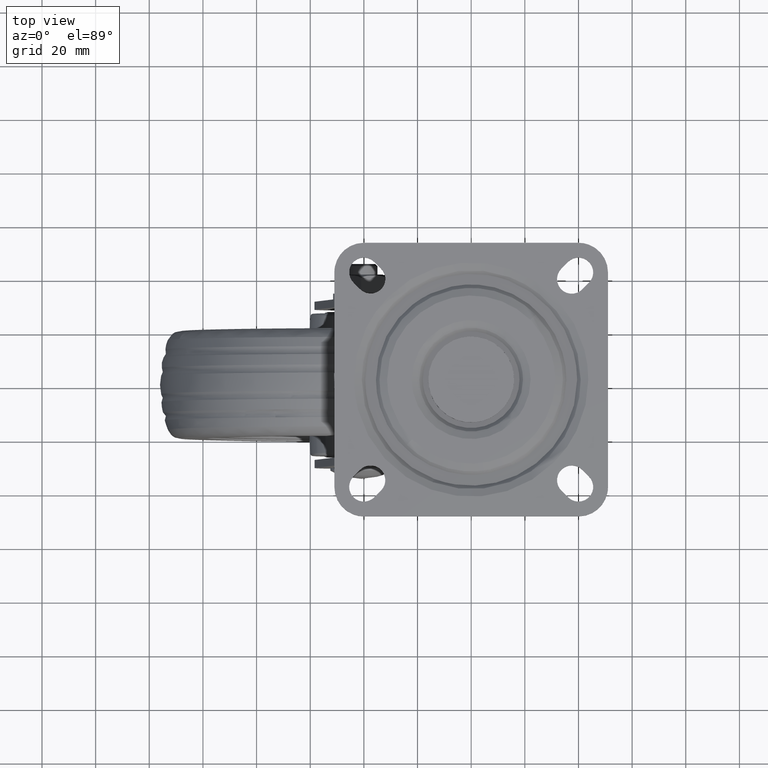
[diagram: clean part render]
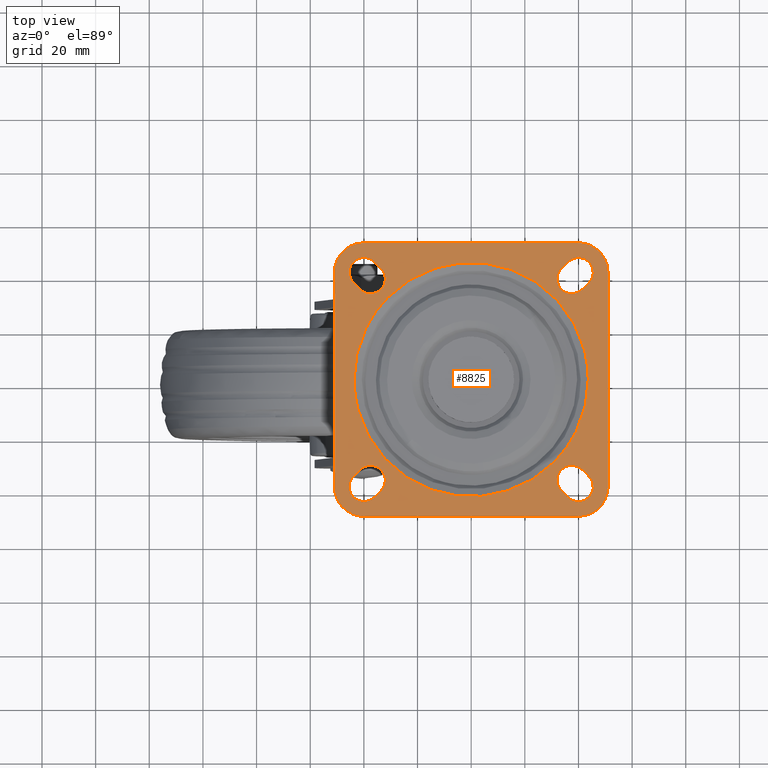
[diagram: same view with one face highlighted and labeled with its STEP entity id]
A machine part, top view. The second image highlights one B-rep face of the part: STEP entity #8825.
In plain terms, the highlighted face is a freeform B-spline surface patch.
Its self-contained STEP definition (entity closure, byte-faithful):
#8352=CARTESIAN_POINT('',(-31.063409350435641,30.675487317150090,-6.616970E-016));
#8353=VERTEX_POINT('',#8352);
#8367=CARTESIAN_POINT('',(-43.656854249492397,0.0,0.0));
#8368=VERTEX_POINT('',#8367);
#8369=CARTESIAN_POINT('',(-43.656854249492397,0.0,0.0));
#8370=CARTESIAN_POINT('',(-43.656854248090532,17.922785791744008,-3.308485E-016));
#8371=CARTESIAN_POINT('',(-31.063409350435641,30.675487317150093,-6.616970E-016));
#8379=(BOUNDED_CURVE()B_SPLINE_CURVE(2,(#8369,#8370,#8371),.UNSPECIFIED.,.F.,.U.)B_SPLINE_CURVE_WITH_KNOTS((3,3),(0.0,0.124051937432030),.UNSPECIFIED.)CURVE()GEOMETRIC_REPRESENTATION_ITEM()RATIONAL_B_SPLINE_CURVE((1.0,0.854664114981951,0.853561814883004))REPRESENTATION_ITEM(''));
#8380=EDGE_CURVE('',#8368,#8353,#8379,.T.);
#8382=CARTESIAN_POINT('',(31.063409350435641,-30.675487317150090,-6.616970E-016));
#8383=VERTEX_POINT('',#8382);
#8384=CARTESIAN_POINT('',(31.063409350435641,-30.675487317150093,-6.616970E-016));
#8385=CARTESIAN_POINT('',(18.244154641217776,-43.656854246961153,-6.049355E-016));
#8386=CARTESIAN_POINT('',(-1.977401E-009,-43.656854247539677,-4.666743E-016));
#8387=CARTESIAN_POINT('',(-43.656854250067916,-43.656854248924063,-1.358258E-016));
#8388=CARTESIAN_POINT('',(-43.656854249492397,0.0,0.0));
#8396=(BOUNDED_CURVE()B_SPLINE_CURVE(2,(#8384,#8385,#8386,#8387,#8388),.UNSPECIFIED.,.F.,.U.)B_SPLINE_CURVE_WITH_KNOTS((3,2,3),(0.624051937432030,0.750000000000000,1.0),.UNSPECIFIED.)CURVE()GEOMETRIC_REPRESENTATION_ITEM()RATIONAL_B_SPLINE_CURVE((0.853561814883004,0.852442666204596,1.0,0.707106781186547,1.0))REPRESENTATION_ITEM(''));
#8397=EDGE_CURVE('',#8383,#8368,#8396,.T.);
#8446=CARTESIAN_POINT('',(43.656854249492397,0.0,0.0));
#8447=VERTEX_POINT('',#8446);
#8448=CARTESIAN_POINT('',(43.656854249492397,0.0,0.0));
#8449=CARTESIAN_POINT('',(43.656854248090525,-17.922785791744005,-3.308485E-016));
#8450=CARTESIAN_POINT('',(31.063409350435641,-30.675487317150093,-6.616970E-016));
#8458=(BOUNDED_CURVE()B_SPLINE_CURVE(2,(#8448,#8449,#8450),.UNSPECIFIED.,.F.,.U.)B_SPLINE_CURVE_WITH_KNOTS((3,3),(0.500000000000000,0.624051937432030),.UNSPECIFIED.)CURVE()GEOMETRIC_REPRESENTATION_ITEM()RATIONAL_B_SPLINE_CURVE((1.0,0.854664114981951,0.853561814883004))REPRESENTATION_ITEM(''));
#8459=EDGE_CURVE('',#8447,#8383,#8458,.T.);
#8461=CARTESIAN_POINT('',(-31.063409350435641,30.675487317150093,-6.616970E-016));
#8462=CARTESIAN_POINT('',(-18.244154641217786,43.656854246961167,-6.049355E-016));
#8463=CARTESIAN_POINT('',(1.977399E-009,43.656854247539691,-4.666743E-016));
#8464=CARTESIAN_POINT('',(43.656854250067916,43.656854248924063,-1.358258E-016));
#8465=CARTESIAN_POINT('',(43.656854249492397,0.0,0.0));
#8473=(BOUNDED_CURVE()B_SPLINE_CURVE(2,(#8461,#8462,#8463,#8464,#8465),.UNSPECIFIED.,.F.,.U.)B_SPLINE_CURVE_WITH_KNOTS((3,2,3),(0.124051937432030,0.250000000000000,0.500000000000000),.UNSPECIFIED.)CURVE()GEOMETRIC_REPRESENTATION_ITEM()RATIONAL_B_SPLINE_CURVE((0.853561814883004,0.852442666204596,1.0,0.707106781186547,1.0))REPRESENTATION_ITEM(''));
#8474=EDGE_CURVE('',#8353,#8447,#8473,.T.);
#8482=CARTESIAN_POINT('',(-56.094879104004477,56.094899802304212,0.0));
#8483=CARTESIAN_POINT('',(56.094885839856367,56.094899802304212,0.0));
#8484=CARTESIAN_POINT('',(-56.094879104004477,-56.094902538157413,0.0));
#8485=CARTESIAN_POINT('',(56.094885839856367,-56.094902538157413,0.0));
#8486=B_SPLINE_SURFACE_WITH_KNOTS('',1,1,((#8482,#8484),(#8483,#8485)),.UNSPECIFIED.,.F.,.F.,.U.,(2,2),(2,2),(0.0,112.189764943860890),(0.0,112.189802340461600),.UNSPECIFIED.);
#8487=CARTESIAN_POINT('',(39.999977896509812,50.999999999997698,0.0));
#8488=VERTEX_POINT('',#8487);
#8489=CARTESIAN_POINT('',(-39.999977544248303,51.0,0.0));
#8490=VERTEX_POINT('',#8489);
#8491=CARTESIAN_POINT('',(39.999977896509812,50.999999999997698,0.0));
#8492=CARTESIAN_POINT('',(-39.999977544248303,51.0,0.0));
#8493=QUASI_UNIFORM_CURVE('',1,(#8491,#8492),.UNSPECIFIED.,.F.,.U.);
#8494=EDGE_CURVE('',#8488,#8490,#8493,.T.);
#8495=ORIENTED_EDGE('',*,*,#8494,.T.);
#8496=CARTESIAN_POINT('',(-50.999980999998101,40.000006911503853,0.0));
#8497=VERTEX_POINT('',#8496);
#8498=CARTESIAN_POINT('',(-39.999977544248303,51.0,0.0));
#8499=CARTESIAN_POINT('',(-50.999974088496387,51.000003455750331,0.0));
#8500=CARTESIAN_POINT('',(-50.999980999998073,40.000006911503853,0.0));
#8508=(BOUNDED_CURVE()B_SPLINE_CURVE(2,(#8498,#8499,#8500),.UNSPECIFIED.,.F.,.U.)CURVE()GEOMETRIC_REPRESENTATION_ITEM()QUASI_UNIFORM_CURVE()RATIONAL_B_SPLINE_CURVE((1.0,0.707106892258612,1.0))REPRESENTATION_ITEM(''));
#8509=EDGE_CURVE('',#8490,#8497,#8508,.T.);
#8510=ORIENTED_EDGE('',*,*,#8509,.T.);
#8511=CARTESIAN_POINT('',(-50.999981000000197,-40.0,0.0));
#8512=VERTEX_POINT('',#8511);
#8513=CARTESIAN_POINT('',(-50.999980999998101,40.000006911503853,0.0));
#8514=CARTESIAN_POINT('',(-50.999981000000197,-40.0,0.0));
#8515=QUASI_UNIFORM_CURVE('',1,(#8513,#8514),.UNSPECIFIED.,.F.,.U.);
#8516=EDGE_CURVE('',#8497,#8512,#8515,.T.);
#8517=ORIENTED_EDGE('',*,*,#8516,.T.);
#8518=CARTESIAN_POINT('',(-39.999977544248303,-51.0,0.0));
#8519=VERTEX_POINT('',#8518);
#8520=CARTESIAN_POINT('',(-50.999981000000197,-40.0,0.0));
#8521=CARTESIAN_POINT('',(-51.000414229232163,-41.079957559426312,0.0));
#8522=CARTESIAN_POINT('',(-50.726082468724883,-42.924577940020527,0.0));
#8523=CARTESIAN_POINT('',(-49.812276872156517,-45.092469599658173,0.0));
#8524=CARTESIAN_POINT('',(-48.764689389983822,-46.724452225793812,0.0));
#8525=CARTESIAN_POINT('',(-47.408520629219332,-48.239608509791083,0.0));
#8526=CARTESIAN_POINT('',(-45.580879401814173,-49.577746981158782,0.0));
#8527=CARTESIAN_POINT('',(-43.059376365284677,-50.695494871390487,0.0));
#8528=CARTESIAN_POINT('',(-41.169989318484618,-51.000651379700130,0.0));
#8529=CARTESIAN_POINT('',(-39.999977544248303,-51.0,0.0));
#8530=B_SPLINE_CURVE_WITH_KNOTS('',3,(#8520,#8521,#8522,#8523,#8524,#8525,#8526,#8527,#8528,#8529),.UNSPECIFIED.,.F.,.U.,(4,1,1,1,1,1,1,4),(0.000000224879592,3.239766866752317,5.534645671236040,7.019592646819724,9.044380050357612,11.609224060283671,13.769105835571580,17.278871467454529),.UNSPECIFIED.);
#8531=EDGE_CURVE('',#8512,#8519,#8530,.T.);
#8532=ORIENTED_EDGE('',*,*,#8531,.T.);
#8533=CARTESIAN_POINT('',(39.999984999999803,-51.0,0.0));
#8534=VERTEX_POINT('',#8533);
#8535=CARTESIAN_POINT('',(-39.999977544248303,-51.0,0.0));
#8536=CARTESIAN_POINT('',(39.999984999999803,-51.0,0.0));
#8537=QUASI_UNIFORM_CURVE('',1,(#8535,#8536),.UNSPECIFIED.,.F.,.U.);
#8538=EDGE_CURVE('',#8519,#8534,#8537,.T.);
#8539=ORIENTED_EDGE('',*,*,#8538,.T.);
#8540=CARTESIAN_POINT('',(50.999984999999803,-40.0,0.0));
#8541=VERTEX_POINT('',#8540);
#8542=CARTESIAN_POINT('',(39.999984999999803,-51.000000000000007,0.0));
#8543=CARTESIAN_POINT('',(50.999984999999803,-51.000000000000007,0.0));
#8544=CARTESIAN_POINT('',(50.999984999999803,-40.0,0.0));
#8552=(BOUNDED_CURVE()B_SPLINE_CURVE(2,(#8542,#8543,#8544),.UNSPECIFIED.,.F.,.U.)CURVE()GEOMETRIC_REPRESENTATION_ITEM()QUASI_UNIFORM_CURVE()RATIONAL_B_SPLINE_CURVE((1.0,0.707106781186548,1.0))REPRESENTATION_ITEM(''));
#8553=EDGE_CURVE('',#8534,#8541,#8552,.T.);
#8554=ORIENTED_EDGE('',*,*,#8553,.T.);
#8555=CARTESIAN_POINT('',(50.999984999999803,40.0,0.0));
#8556=VERTEX_POINT('',#8555);
#8557=CARTESIAN_POINT('',(50.999984999999803,-40.0,0.0));
#8558=CARTESIAN_POINT('',(50.999984999999803,40.0,0.0));
#8559=QUASI_UNIFORM_CURVE('',1,(#8557,#8558),.UNSPECIFIED.,.F.,.U.);
#8560=EDGE_CURVE('',#8541,#8556,#8559,.T.);
#8561=ORIENTED_EDGE('',*,*,#8560,.T.);
#8562=CARTESIAN_POINT('',(50.999984999999803,40.0,0.0));
#8563=CARTESIAN_POINT('',(51.000126687770319,40.809938090371020,0.0));
#8564=CARTESIAN_POINT('',(50.820273453016661,42.429767044045683,0.0));
#8565=CARTESIAN_POINT('',(49.981057939160777,44.870032636646378,0.0));
#8566=CARTESIAN_POINT('',(48.682039668827777,46.893655427234059,0.0));
#8567=CARTESIAN_POINT('',(47.180894646219400,48.394437745954789,0.0));
#8568=CARTESIAN_POINT('',(45.535458523951853,49.583921351749908,0.0));
#8569=CARTESIAN_POINT('',(43.194439477320643,50.673828316418707,0.0));
#8570=CARTESIAN_POINT('',(41.169960737094137,51.000656474085289,0.0));
#8571=CARTESIAN_POINT('',(39.999977896509812,50.999999999997698,0.0));
#8572=B_SPLINE_CURVE_WITH_KNOTS('',3,(#8562,#8563,#8564,#8565,#8566,#8567,#8568,#8569,#8570,#8571),.UNSPECIFIED.,.F.,.U.,(4,1,1,1,1,1,1,4),(0.000000224827026,2.429806476383883,4.859693750232909,7.694520703182066,9.584351370562583,11.204251671294470,13.769108742410539,17.278875115261460),.UNSPECIFIED.);
#8573=EDGE_CURVE('',#8556,#8488,#8572,.T.);
#8574=ORIENTED_EDGE('',*,*,#8573,.T.);
#8575=EDGE_LOOP('',(#8495,#8510,#8517,#8532,#8539,#8554,#8561,#8574));
#8576=FACE_OUTER_BOUND('',#8575,.T.);
#8577=CARTESIAN_POINT('',(-33.597049696237399,41.375174696237600,0.0));
#8578=VERTEX_POINT('',#8577);
#8579=CARTESIAN_POINT('',(-36.124825303777712,43.902950303777700,0.0));
#8580=VERTEX_POINT('',#8579);
#8581=CARTESIAN_POINT('',(-33.597049696237399,41.375174696237600,0.0));
#8582=CARTESIAN_POINT('',(-36.124825303777712,43.902950303777700,0.0));
#8583=QUASI_UNIFORM_CURVE('',1,(#8581,#8582),.UNSPECIFIED.,.F.,.U.);
#8584=EDGE_CURVE('',#8578,#8580,#8583,.T.);
#8585=ORIENTED_EDGE('',*,*,#8584,.F.);
#8586=CARTESIAN_POINT('',(-41.389091296521151,33.610916703473400,0.0));
#8587=VERTEX_POINT('',#8586);
#8588=CARTESIAN_POINT('',(-41.389091296521151,33.610916703473400,0.0));
#8589=CARTESIAN_POINT('',(-40.976119919154087,33.197536525266173,0.0));
#8590=CARTESIAN_POINT('',(-40.238201581157533,32.664540302596983,0.0));
#8591=CARTESIAN_POINT('',(-39.023650653042559,32.178279917654983,0.0));
#8592=CARTESIAN_POINT('',(-38.001302543422710,31.987168295568729,0.0));
#8593=CARTESIAN_POINT('',(-36.828431695606099,32.000497980563978,0.0));
#8594=CARTESIAN_POINT('',(-35.723538714071012,32.247223108015760,0.0));
#8595=CARTESIAN_POINT('',(-34.702216926376458,32.728672857079943,0.0));
#8596=CARTESIAN_POINT('',(-33.713864829611182,33.440483562935512,0.0));
#8597=CARTESIAN_POINT('',(-32.910884521536182,34.367711195098060,0.0));
#8598=CARTESIAN_POINT('',(-32.258395254798749,35.657324260061280,0.0));
#8599=CARTESIAN_POINT('',(-31.976575041803041,36.897774883913243,0.0));
#8600=CARTESIAN_POINT('',(-32.006301681657177,38.252443269355503,0.0));
#8601=CARTESIAN_POINT('',(-32.267245701777441,39.307446092239147,0.0));
#8602=CARTESIAN_POINT('',(-32.784053699654251,40.409091408184793,0.0));
#8603=CARTESIAN_POINT('',(-33.248578356987942,41.024446076045344,0.0));
#8604=CARTESIAN_POINT('',(-33.597049696237399,41.375174696237600,0.0));
#8605=B_SPLINE_CURVE_WITH_KNOTS('',3,(#8588,#8589,#8590,#8591,#8592,#8593,#8594,#8595,#8596,#8597,#8598,#8599,#8600,#8601,#8602,#8603,#8604),.UNSPECIFIED.,.F.,.U.,(4,1,1,1,1,1,1,1,1,1,1,1,1,1,4),(0.000000899976094,1.752875033313796,2.696751487981105,3.910358717900175,4.854272358750377,6.202666221692656,7.281439953531624,8.225378191476185,9.843231856118139,10.921987729555481,12.540138365848470,13.618879241312779,14.967296503559490,15.776343902140519,17.259557008160559),.UNSPECIFIED.);
#8606=EDGE_CURVE('',#8587,#8578,#8605,.T.);
#8607=ORIENTED_EDGE('',*,*,#8606,.F.);
#8608=CARTESIAN_POINT('',(-43.889092183694203,36.110917590648299,0.0));
#8609=VERTEX_POINT('',#8608);
#8610=CARTESIAN_POINT('',(-43.889092183694203,36.110917590648299,0.0));
#8611=CARTESIAN_POINT('',(-41.389091296521151,33.610916703473400,0.0));
#8612=QUASI_UNIFORM_CURVE('',1,(#8610,#8611),.UNSPECIFIED.,.F.,.U.);
#8613=EDGE_CURVE('',#8609,#8587,#8612,.T.);
#8614=ORIENTED_EDGE('',*,*,#8613,.F.);
#8615=CARTESIAN_POINT('',(-36.124825303777712,43.902950303777700,0.0));
#8616=CARTESIAN_POINT('',(-36.539274771118912,44.314845611466062,0.0));
#8617=CARTESIAN_POINT('',(-37.279078661764373,44.845239848090813,0.0));
#8618=CARTESIAN_POINT('',(-38.411494160035403,45.293828691391120,0.0));
#8619=CARTESIAN_POINT('',(-39.515509269314563,45.524378960265111,0.0));
#8620=CARTESIAN_POINT('',(-40.694590274290839,45.506719915611640,0.0));
#8621=CARTESIAN_POINT('',(-42.095824833629429,45.152311044131537,0.0));
#8622=CARTESIAN_POINT('',(-43.250794276471908,44.513459859577509,0.0));
#8623=CARTESIAN_POINT('',(-44.197550096956718,43.608405091784412,0.0));
#8624=CARTESIAN_POINT('',(-44.820253389117468,42.721344556309070,0.0));
#8625=CARTESIAN_POINT('',(-45.221637076410218,41.812431652587691,0.0));
#8626=CARTESIAN_POINT('',(-45.461446620542553,40.850353065376950,0.0));
#8627=CARTESIAN_POINT('',(-45.533561169330163,39.859392438178887,0.0));
#8628=CARTESIAN_POINT('',(-45.378081618590407,38.604355762283483,0.0));
#8629=CARTESIAN_POINT('',(-44.870435410788417,37.290637351157017,0.0));
#8630=CARTESIAN_POINT('',(-44.238791145648683,36.460406802510079,0.0));
#8631=CARTESIAN_POINT('',(-43.889092183694203,36.110917590648299,0.0));
#8632=B_SPLINE_CURVE_WITH_KNOTS('',3,(#8615,#8616,#8617,#8618,#8619,#8620,#8621,#8622,#8623,#8624,#8625,#8626,#8627,#8628,#8629,#8630,#8631),.UNSPECIFIED.,.F.,.U.,(4,1,1,1,1,1,1,1,1,1,1,1,1,1,4),(0.000000899960618,1.752873756563684,2.696749524073439,3.640663756995556,5.123951614473599,6.202661704811863,7.955698451848873,9.034188351084485,10.112916004723679,11.191667435874280,12.000745933678100,13.079505971402980,14.158231292889930,15.776332413274190,17.259544438840908),.UNSPECIFIED.);
#8633=EDGE_CURVE('',#8580,#8609,#8632,.T.);
#8634=ORIENTED_EDGE('',*,*,#8633,.F.);
#8635=EDGE_LOOP('',(#8585,#8607,#8614,#8634));
#8636=FACE_BOUND('',#8635,.T.);
#8637=CARTESIAN_POINT('',(36.110900999999799,-43.889082000000052,0.0));
#8638=VERTEX_POINT('',#8637);
#8639=CARTESIAN_POINT('',(43.899431855316500,-36.121284851172902,0.0));
#8640=VERTEX_POINT('',#8639);
#8641=CARTESIAN_POINT('',(36.110900999999799,-43.889082000000052,0.0));
#8642=CARTESIAN_POINT('',(36.396962082167569,-44.175247081244130,0.0));
#8643=CARTESIAN_POINT('',(37.032632156909457,-44.683960657922327,0.0));
#8644=CARTESIAN_POINT('',(38.129989077064671,-45.220026400438329,0.0));
#8645=CARTESIAN_POINT('',(39.230118029871932,-45.481786147748572,0.0));
#8646=CARTESIAN_POINT('',(40.312366177385378,-45.522278175888601,0.0));
#8647=CARTESIAN_POINT('',(41.563876249702083,-45.337926090248722,0.0));
#8648=CARTESIAN_POINT('',(42.777985246462443,-44.818991393929281,0.0));
#8649=CARTESIAN_POINT('',(43.811593484876028,-44.013937245953102,0.0));
#8650=CARTESIAN_POINT('',(44.520910412674787,-43.194054744450057,0.0));
#8651=CARTESIAN_POINT('',(45.012104363274929,-42.330105767529417,0.0));
#8652=CARTESIAN_POINT('',(45.347830842933462,-41.396846560599172,0.0));
#8653=CARTESIAN_POINT('',(45.519610338888050,-40.417912890237417,0.0));
#8654=CARTESIAN_POINT('',(45.495178879816933,-39.333954984118577,0.0));
#8655=CARTESIAN_POINT('',(45.259938697655507,-38.275547327628601,0.0));
#8656=CARTESIAN_POINT('',(44.768272948085261,-37.159298466001268,0.0));
#8657=CARTESIAN_POINT('',(44.248321962108193,-36.471797197589531,0.0));
#8658=CARTESIAN_POINT('',(43.899431855316500,-36.121284851172902,0.0));
#8659=B_SPLINE_CURVE_WITH_KNOTS('',3,(#8641,#8642,#8643,#8644,#8645,#8646,#8647,#8648,#8649,#8650,#8651,#8652,#8653,#8654,#8655,#8656,#8657,#8658),.UNSPECIFIED.,.F.,.U.,(4,1,1,1,1,1,1,1,1,1,1,1,1,1,1,4),(0.000000901539412,1.213885798352875,2.427770040851003,3.641717588707897,4.585909590637808,5.664947170123151,7.418435940473644,8.497453553103849,9.576305411063402,10.655376469027640,11.464674939791371,12.543759163581500,13.622811512739981,14.701858247233000,15.780899003806599,17.264540487673479),.UNSPECIFIED.);
#8660=EDGE_CURVE('',#8638,#8640,#8659,.T.);
#8661=ORIENTED_EDGE('',*,*,#8660,.F.);
#8662=CARTESIAN_POINT('',(33.610898926999553,-41.389078926999453,0.0));
#8663=VERTEX_POINT('',#8662);
#8664=CARTESIAN_POINT('',(36.110900999999799,-43.889082000000052,0.0));
#8665=CARTESIAN_POINT('',(33.610898926999553,-41.389078926999453,0.0));
#8666=QUASI_UNIFORM_CURVE('',1,(#8664,#8665),.UNSPECIFIED.,.F.,.U.);
#8667=EDGE_CURVE('',#8638,#8663,#8666,.T.);
#8668=ORIENTED_EDGE('',*,*,#8667,.T.);
#8669=CARTESIAN_POINT('',(41.378527047411552,-33.600381051628602,0.0));
#8670=VERTEX_POINT('',#8669);
#8671=CARTESIAN_POINT('',(41.378527047411552,-33.600381051628602,0.0));
#8672=CARTESIAN_POINT('',(41.091692791563553,-33.315000562146828,0.0));
#8673=CARTESIAN_POINT('',(40.454662987751952,-32.808004213996469,0.0));
#8674=CARTESIAN_POINT('',(39.355871708015329,-32.274944366701007,0.0));
#8675=CARTESIAN_POINT('',(38.078919133526838,-31.974620214569079,0.0));
#8676=CARTESIAN_POINT('',(36.808759117790231,-31.992798601303381,0.0));
#8677=CARTESIAN_POINT('',(35.494627834575752,-32.324513404849171,0.0));
#8678=CARTESIAN_POINT('',(34.408283397160822,-32.890371147707420,0.0));
#8679=CARTESIAN_POINT('',(33.485928389034001,-33.688464353204687,0.0));
#8680=CARTESIAN_POINT('',(32.820005490072838,-34.543942762882672,0.0));
#8681=CARTESIAN_POINT('',(32.252297772979738,-35.674360732359673,0.0));
#8682=CARTESIAN_POINT('',(31.974545014778460,-36.916161212457332,0.0));
#8683=CARTESIAN_POINT('',(32.004370104310730,-38.090410462406332,0.0));
#8684=CARTESIAN_POINT('',(32.198360240435882,-39.062999189556862,0.0));
#8685=CARTESIAN_POINT('',(32.637567158028830,-40.200918740697873,0.0));
#8686=CARTESIAN_POINT('',(33.197405268019580,-40.975984903624060,0.0));
#8687=CARTESIAN_POINT('',(33.610898926999553,-41.389078926999453,0.0));
#8688=B_SPLINE_CURVE_WITH_KNOTS('',3,(#8671,#8672,#8673,#8674,#8675,#8676,#8677,#8678,#8679,#8680,#8681,#8682,#8683,#8684,#8685,#8686,#8687),.UNSPECIFIED.,.F.,.U.,(4,1,1,1,1,1,1,1,1,1,1,1,1,1,4),(0.000000901461799,1.213868673552703,2.427735803625090,3.641666233748950,5.125362543879588,6.204369579643378,7.688114865607949,8.766977889038804,9.845935083370161,10.924987227191790,12.543582271101190,13.622619403349630,14.431891235913231,15.510898211349540,17.264297021975398),.UNSPECIFIED.);
#8689=EDGE_CURVE('',#8670,#8663,#8688,.T.);
#8690=ORIENTED_EDGE('',*,*,#8689,.F.);
#8691=CARTESIAN_POINT('',(41.378527047411552,-33.600381051628602,0.0));
#8692=CARTESIAN_POINT('',(43.899431855316500,-36.121284851172902,0.0));
#8693=QUASI_UNIFORM_CURVE('',1,(#8691,#8692),.UNSPECIFIED.,.F.,.U.);
#8694=EDGE_CURVE('',#8670,#8640,#8693,.T.);
#8695=ORIENTED_EDGE('',*,*,#8694,.T.);
#8696=EDGE_LOOP('',(#8661,#8668,#8690,#8695));
#8697=FACE_BOUND('',#8696,.T.);
#8698=CARTESIAN_POINT('',(-43.889083000000213,-36.110888999999752,0.0));
#8699=VERTEX_POINT('',#8698);
#8700=CARTESIAN_POINT('',(-36.121835741196200,-43.899979741195750,0.0));
#8701=VERTEX_POINT('',#8700);
#8702=CARTESIAN_POINT('',(-43.889083000000213,-36.110888999999752,0.0));
#8703=CARTESIAN_POINT('',(-44.238900598733423,-36.460443225900832,0.0));
#8704=CARTESIAN_POINT('',(-44.733132665260896,-37.110423768400757,0.0));
#8705=CARTESIAN_POINT('',(-45.297429351633618,-38.340930146925110,0.0));
#8706=CARTESIAN_POINT('',(-45.537470966896372,-39.544194036234479,0.0));
#8707=CARTESIAN_POINT('',(-45.476119164734747,-40.807643068139981,0.0));
#8708=CARTESIAN_POINT('',(-45.180964052651213,-41.991125125086057,0.0));
#8709=CARTESIAN_POINT('',(-44.618106005835173,-43.078983147141230,0.0));
#8710=CARTESIAN_POINT('',(-43.822587965887827,-44.003519739106281,0.0));
#8711=CARTESIAN_POINT('',(-43.040096150445727,-44.616065535997812,0.0));
#8712=CARTESIAN_POINT('',(-42.086838767543568,-45.127765254126558,0.0));
#8713=CARTESIAN_POINT('',(-41.047125295154828,-45.445240900917007,0.0));
#8714=CARTESIAN_POINT('',(-39.875938215882272,-45.533954461474892,0.0));
#8715=CARTESIAN_POINT('',(-38.620136289782707,-45.382171179819942,0.0));
#8716=CARTESIAN_POINT('',(-37.304622331160623,-44.878224856777017,0.0));
#8717=CARTESIAN_POINT('',(-36.472388940147297,-44.248778818465368,0.0));
#8718=CARTESIAN_POINT('',(-36.121835741196200,-43.899979741195750,0.0));
#8719=B_SPLINE_CURVE_WITH_KNOTS('',3,(#8702,#8703,#8704,#8705,#8706,#8707,#8708,#8709,#8710,#8711,#8712,#8713,#8714,#8715,#8716,#8717,#8718),.UNSPECIFIED.,.F.,.U.,(4,1,1,1,1,1,1,1,1,1,1,1,1,1,4),(0.000000901282888,1.483561813365881,2.427661098179931,4.046191272047215,5.125204831161078,6.204178674883940,7.687878293549630,8.766708125627643,9.845632117323717,10.654898335853821,12.003681052600379,13.082704963043559,14.161694160329731,15.780190891452090,17.263765781496740),.UNSPECIFIED.);
#8720=EDGE_CURVE('',#8699,#8701,#8719,.T.);
#8721=ORIENTED_EDGE('',*,*,#8720,.F.);
#8722=CARTESIAN_POINT('',(-41.389081000000203,-33.610885999999951,0.0));
#8723=VERTEX_POINT('',#8722);
#8724=CARTESIAN_POINT('',(-43.889083000000213,-36.110888999999752,0.0));
#8725=CARTESIAN_POINT('',(-41.389081000000203,-33.610885999999951,0.0));
#8726=QUASI_UNIFORM_CURVE('',1,(#8724,#8725),.UNSPECIFIED.,.F.,.U.);
#8727=EDGE_CURVE('',#8699,#8723,#8726,.T.);
#8728=ORIENTED_EDGE('',*,*,#8727,.T.);
#8729=CARTESIAN_POINT('',(-33.600020258824699,-41.378164258824199,0.0));
#8730=VERTEX_POINT('',#8729);
#8731=CARTESIAN_POINT('',(-33.600020258824699,-41.378164258824199,0.0));
#8732=CARTESIAN_POINT('',(-33.314677334466218,-41.091313497118222,0.0));
#8733=CARTESIAN_POINT('',(-32.807742356177599,-40.454256630198778,0.0));
#8734=CARTESIAN_POINT('',(-32.274793062718267,-39.355447860401597,0.0));
#8735=CARTESIAN_POINT('',(-31.995359502111789,-38.166597836082950,0.0));
#8736=CARTESIAN_POINT('',(-31.981435272719430,-36.809644705411891,0.0));
#8737=CARTESIAN_POINT('',(-32.292911747947720,-35.575922379868153,0.0));
#8738=CARTESIAN_POINT('',(-32.856036743668049,-34.495489004903227,0.0));
#8739=CARTESIAN_POINT('',(-33.552085194473307,-33.606209912908113,0.0));
#8740=CARTESIAN_POINT('',(-34.533439815977012,-32.802870009614772,0.0));
#8741=CARTESIAN_POINT('',(-35.598625379176873,-32.300603474975183,0.0));
#8742=CARTESIAN_POINT('',(-36.648381449642358,-32.038711420766859,0.0));
#8743=CARTESIAN_POINT('',(-37.639583998968689,-31.966324530953319,0.0));
#8744=CARTESIAN_POINT('',(-38.715515889158283,-32.099698872474377,0.0));
#8745=CARTESIAN_POINT('',(-40.045132539184017,-32.539400827062067,0.0));
#8746=CARTESIAN_POINT('',(-40.912602410261833,-33.133544512467992,0.0));
#8747=CARTESIAN_POINT('',(-41.389081000000203,-33.610885999999951,0.0));
#8748=B_SPLINE_CURVE_WITH_KNOTS('',3,(#8731,#8732,#8733,#8734,#8735,#8736,#8737,#8738,#8739,#8740,#8741,#8742,#8743,#8744,#8745,#8746,#8747),.UNSPECIFIED.,.F.,.U.,(4,1,1,1,1,1,1,1,1,1,1,1,1,1,4),(0.000000901316774,1.213834714600502,2.427667911210511,3.641564397003533,4.855469714724519,6.473944801970555,7.418123880463636,8.497096086877745,9.845659747389551,11.194436083740319,12.003714738953750,13.082741677858269,14.161733903639790,15.240731129296760,17.263814229831119),.UNSPECIFIED.);
#8749=EDGE_CURVE('',#8730,#8723,#8748,.T.);
#8750=ORIENTED_EDGE('',*,*,#8749,.F.);
#8751=CARTESIAN_POINT('',(-33.600020258824699,-41.378164258824199,0.0));
#8752=CARTESIAN_POINT('',(-36.121835741196200,-43.899979741195750,0.0));
#8753=QUASI_UNIFORM_CURVE('',1,(#8751,#8752),.UNSPECIFIED.,.F.,.U.);
#8754=EDGE_CURVE('',#8730,#8701,#8753,.T.);
#8755=ORIENTED_EDGE('',*,*,#8754,.T.);
#8756=EDGE_LOOP('',(#8721,#8728,#8750,#8755));
#8757=FACE_BOUND('',#8756,.T.);
#8758=CARTESIAN_POINT('',(43.889087000000004,36.110905000000102,0.0));
#8759=VERTEX_POINT('',#8758);
#8760=CARTESIAN_POINT('',(36.122528926625137,43.900668926625663,0.0));
#8761=VERTEX_POINT('',#8760);
#8762=CARTESIAN_POINT('',(43.889087000000004,36.110905000000102,0.0));
#8763=CARTESIAN_POINT('',(44.238864023600172,36.460456512669033,0.0));
#8764=CARTESIAN_POINT('',(44.733132732816728,37.110355825193267,0.0));
#8765=CARTESIAN_POINT('',(45.203169248379687,38.135758960514750,0.0));
#8766=CARTESIAN_POINT('',(45.491371295767358,39.226366263465337,0.0));
#8767=CARTESIAN_POINT('',(45.532219373581583,40.314332567828387,0.0));
#8768=CARTESIAN_POINT('',(45.340412001822550,41.424828070205010,0.0));
#8769=CARTESIAN_POINT('',(44.961268241899397,42.488604273086153,0.0));
#8770=CARTESIAN_POINT('',(44.294673114758268,43.516083622743672,0.0));
#8771=CARTESIAN_POINT('',(43.477892676356291,44.295867521929381,0.0));
#8772=CARTESIAN_POINT('',(42.654353458183920,44.848202346302457,0.0));
#8773=CARTESIAN_POINT('',(41.829100611839507,45.215840557954579,0.0));
#8774=CARTESIAN_POINT('',(40.867593206271337,45.458734279661037,0.0));
#8775=CARTESIAN_POINT('',(39.876668885190043,45.534026631403421,0.0));
#8776=CARTESIAN_POINT('',(38.800416047723942,45.403818934510767,0.0));
#8777=CARTESIAN_POINT('',(37.469558539792409,44.968120122777542,0.0));
#8778=CARTESIAN_POINT('',(36.600426193282580,44.376521537457741,0.0));
#8779=CARTESIAN_POINT('',(36.122528926625137,43.900668926625663,0.0));
#8780=B_SPLINE_CURVE_WITH_KNOTS('',3,(#8762,#8763,#8764,#8765,#8766,#8767,#8768,#8769,#8770,#8771,#8772,#8773,#8774,#8775,#8776,#8777,#8778,#8779),.UNSPECIFIED.,.F.,.U.,(4,1,1,1,1,1,1,1,1,1,1,1,1,1,1,4),(0.000000900989939,1.483478039442909,2.427524043882357,3.371606418562388,4.855181975899557,5.664373187127319,6.743300700857057,8.226919552306368,9.305601519225075,10.114818356955320,11.193772703380620,12.003003399999869,13.081966388258550,14.160894662669090,15.239827930223180,17.262791168984201),.UNSPECIFIED.);
#8781=EDGE_CURVE('',#8759,#8761,#8780,.T.);
#8782=ORIENTED_EDGE('',*,*,#8781,.F.);
#8783=CARTESIAN_POINT('',(41.389073999999702,33.610892000000050,0.0));
#8784=VERTEX_POINT('',#8783);
#8785=CARTESIAN_POINT('',(43.889087000000004,36.110905000000102,0.0));
#8786=CARTESIAN_POINT('',(41.389073999999702,33.610892000000050,0.0));
#8787=QUASI_UNIFORM_CURVE('',1,(#8785,#8786),.UNSPECIFIED.,.F.,.U.);
#8788=EDGE_CURVE('',#8759,#8784,#8787,.T.);
#8789=ORIENTED_EDGE('',*,*,#8788,.T.);
#8790=CARTESIAN_POINT('',(33.599331073345603,41.377471073345802,0.0));
#8791=VERTEX_POINT('',#8790);
#8792=CARTESIAN_POINT('',(33.599331073345603,41.377471073345802,0.0));
#8793=CARTESIAN_POINT('',(33.250627616819237,41.026868224802648,0.0));
#8794=CARTESIAN_POINT('',(32.621314088353458,40.194626598085051,0.0));
#8795=CARTESIAN_POINT('',(32.101384486303388,38.836629944013417,0.0));
#8796=CARTESIAN_POINT('',(31.960073297097122,37.532552199305812,0.0));
#8797=CARTESIAN_POINT('',(32.064187480447792,36.498864423015107,0.0));
#8798=CARTESIAN_POINT('',(32.390876564407407,35.326369928491722,0.0));
#8799=CARTESIAN_POINT('',(32.985405838878513,34.250608607407102,0.0));
#8800=CARTESIAN_POINT('',(33.828019434256973,33.368811635667733,0.0));
#8801=CARTESIAN_POINT('',(34.625222489203750,32.779139703059670,0.0));
#8802=CARTESIAN_POINT('',(35.513394073354512,32.333335850654201,0.0));
#8803=CARTESIAN_POINT('',(36.558561537831892,32.045259160494354,0.0));
#8804=CARTESIAN_POINT('',(37.820031103885370,31.953023941682549,0.0));
#8805=CARTESIAN_POINT('',(39.207946297948943,32.194604576149878,0.0));
#8806=CARTESIAN_POINT('',(40.471447787487101,32.812034843093564,0.0));
#8807=CARTESIAN_POINT('',(41.134818198432612,33.356592245808223,0.0));
#8808=CARTESIAN_POINT('',(41.389073999999702,33.610892000000050,0.0));
#8809=B_SPLINE_CURVE_WITH_KNOTS('',3,(#8792,#8793,#8794,#8795,#8796,#8797,#8798,#8799,#8800,#8801,#8802,#8803,#8804,#8805,#8806,#8807,#8808),.UNSPECIFIED.,.F.,.U.,(4,1,1,1,1,1,1,1,1,1,1,1,1,1,4),(0.000000900991328,1.483480580461720,3.101870720829757,4.315712272681774,5.394654827207420,6.203839063901652,7.957208681790199,9.035903203327946,9.845093155308639,10.924053024841980,12.003023954416539,13.081988790558420,14.700393732129969,16.183974745033321,17.262820730733001),.UNSPECIFIED.);
#8810=EDGE_CURVE('',#8791,#8784,#8809,.T.);
#8811=ORIENTED_EDGE('',*,*,#8810,.F.);
#8812=CARTESIAN_POINT('',(33.599331073345603,41.377471073345802,0.0));
#8813=CARTESIAN_POINT('',(36.122528926625137,43.900668926625663,0.0));
#8814=QUASI_UNIFORM_CURVE('',1,(#8812,#8813),.UNSPECIFIED.,.F.,.U.);
#8815=EDGE_CURVE('',#8791,#8761,#8814,.T.);
#8816=ORIENTED_EDGE('',*,*,#8815,.T.);
#8817=EDGE_LOOP('',(#8782,#8789,#8811,#8816));
#8818=FACE_BOUND('',#8817,.T.);
#8819=ORIENTED_EDGE('',*,*,#8380,.T.);
#8820=ORIENTED_EDGE('',*,*,#8474,.T.);
#8821=ORIENTED_EDGE('',*,*,#8459,.T.);
#8822=ORIENTED_EDGE('',*,*,#8397,.T.);
#8823=EDGE_LOOP('',(#8819,#8820,#8821,#8822));
#8824=FACE_BOUND('',#8823,.T.);
#8825=ADVANCED_FACE('',(#8576,#8636,#8697,#8757,#8818,#8824),#8486,.F.);